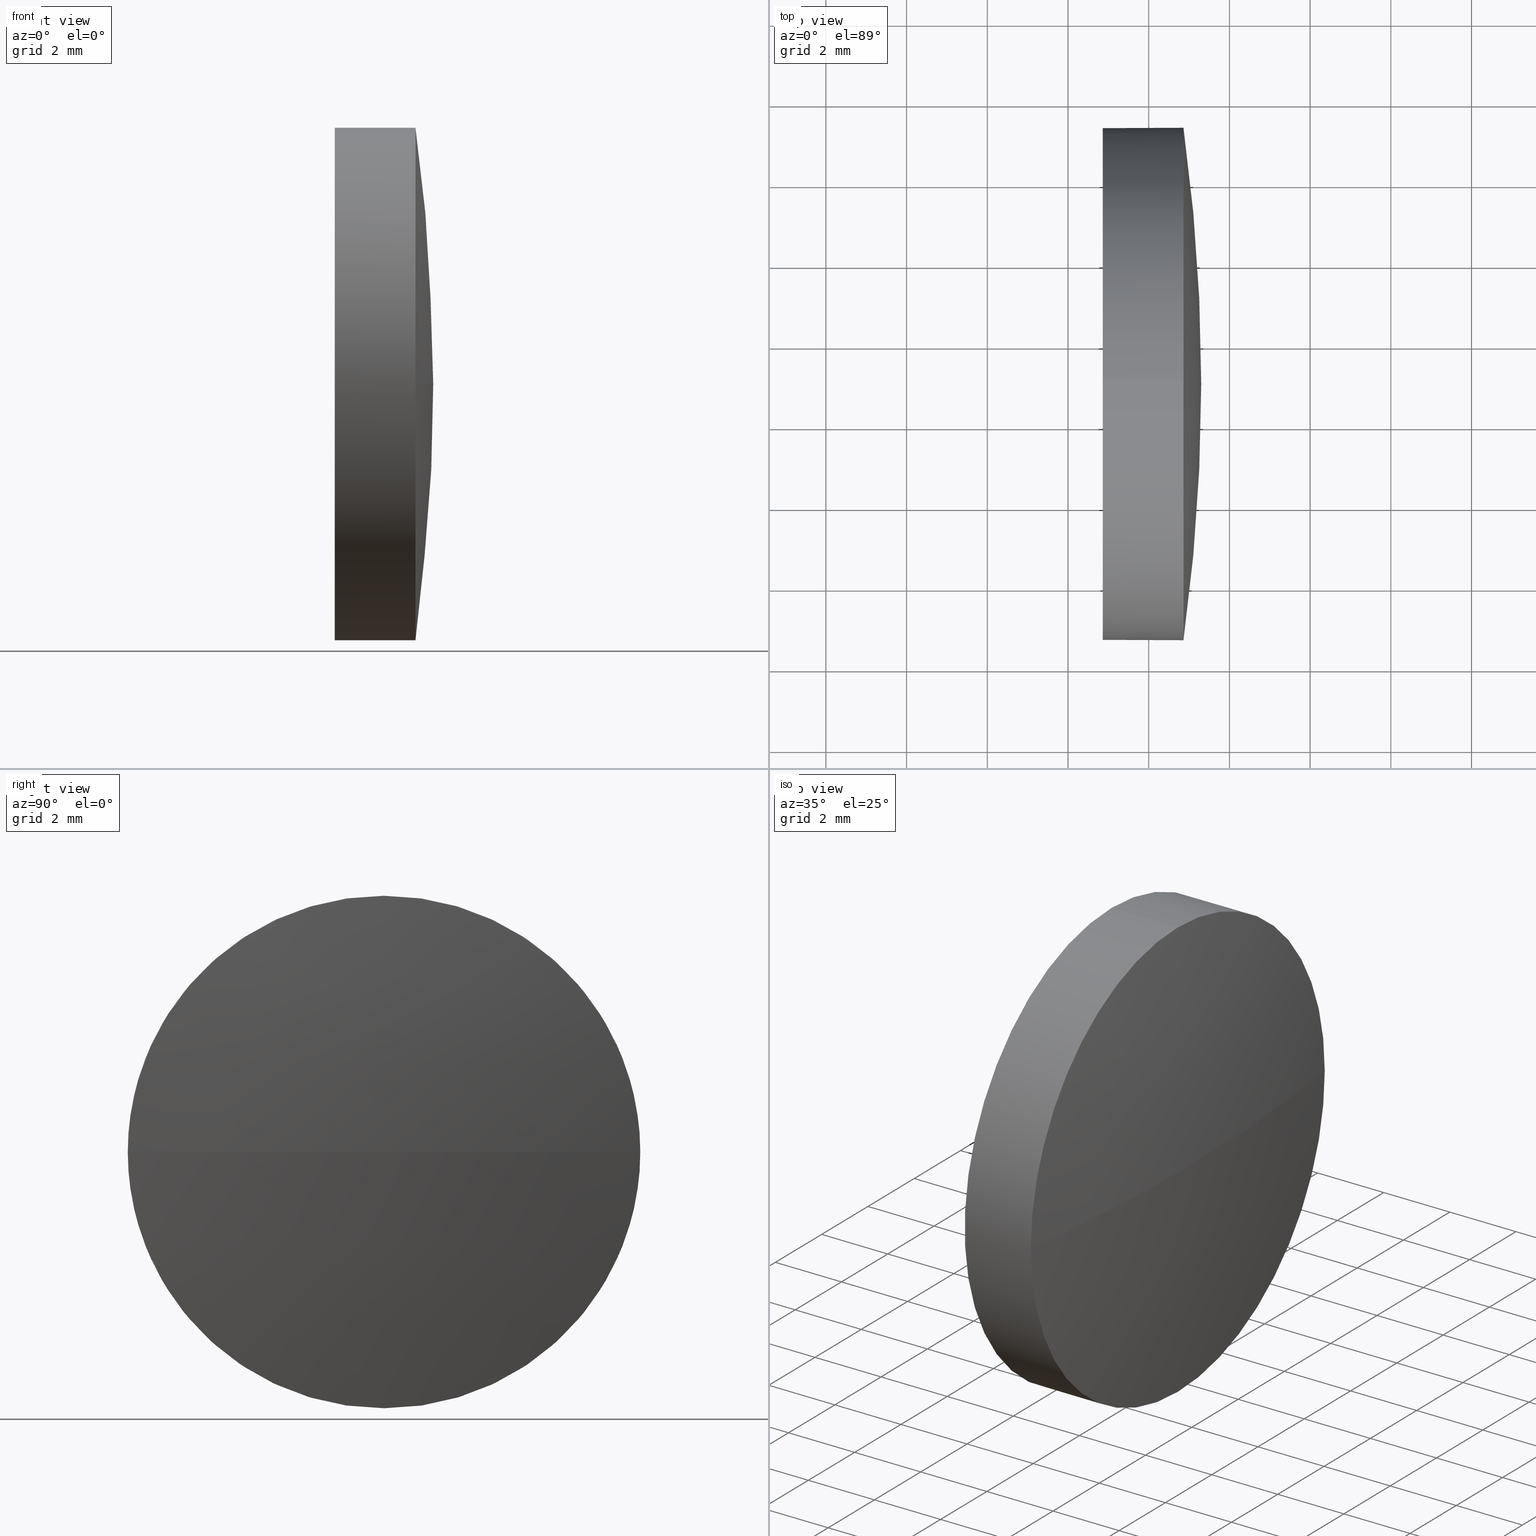
[diagram: canonical four-view strip — front | top / right | iso, engineering-drawing reading convention]
A machine part, canonical four-view strip (front | top / right | iso — engineering-drawing reading convention). The complete STEP part file that produces these views, byte-faithful:
ISO-10303-21;
HEADER;
FILE_DESCRIPTION (( 'STEP AP214' ),
    '1' );
FILE_NAME ('100368.STEP',
    '2019-06-04T05:39:12',
    ( '' ),
    ( '' ),
    'SwSTEP 2.0',
    'SolidWorks 2016',
    '' );
FILE_SCHEMA (( 'AUTOMOTIVE_DESIGN' ));
ENDSEC;

DATA;
#1 = DIRECTION ( 'NONE',  ( -0.0000000000000000000, 0.0000000000000000000, 1.000000000000000000 ) ) ;
#2 = APPLICATION_CONTEXT ( 'automotive_design' ) ;
#3 = DIRECTION ( 'NONE',  ( -1.000000000000000000, -0.0000000000000000000, -0.0000000000000000000 ) ) ;
#4 = AXIS2_PLACEMENT_3D ( 'NONE', #124, #61, #127 ) ;
#5 = DIRECTION ( 'NONE',  ( -1.000000000000000000, -0.0000000000000000000, -0.0000000000000000000 ) ) ;
#6 = ORIENTED_EDGE ( 'NONE', *, *, #56, .F. ) ;
#7 = DIRECTION ( 'NONE',  ( 0.0000000000000000000, 0.0000000000000000000, 1.000000000000000000 ) ) ;
#8 = AXIS2_PLACEMENT_3D ( 'NONE', #153, #1, #156 ) ;
#9 = ORIENTED_EDGE ( 'NONE', *, *, #102, .F. ) ;
#10 = AXIS2_PLACEMENT_3D ( 'NONE', #126, #164, #22 ) ;
#11 = CIRCLE ( 'NONE', #120, 6.349999999999994300 ) ;
#12 = EDGE_LOOP ( 'NONE', ( #6, #146, #9, #85 ) ) ;
#13 = SPHERICAL_SURFACE ( 'NONE', #4, 46.04102272727063600 ) ;
#14 = CARTESIAN_POINT ( 'NONE',  ( 502.8615574523524900, 27.01923278468612500, 0.0000000000000000000 ) ) ;
#15 = CARTESIAN_POINT ( 'NONE',  ( 504.8615574523524900, 33.36923278468605500, 0.0000000000000000000 ) ) ;
#16 = DIRECTION ( 'NONE',  ( -1.000000000000000000, -0.0000000000000000000, -0.0000000000000000000 ) ) ;
#17 = STYLED_ITEM ( 'NONE', ( #25 ), #107 ) ;
#18 = PRODUCT_CONTEXT ( 'NONE', #2, 'mechanical' ) ;
#19 = ORIENTED_EDGE ( 'NONE', *, *, #24, .F. ) ;
#20 = SURFACE_SIDE_STYLE ('',( #138 ) ) ;
#21 = SPHERICAL_SURFACE ( 'NONE', #183, 46.04102272727063600 ) ;
#22 = DIRECTION ( 'NONE',  ( 0.0000000000000000000, 0.0000000000000000000, 1.000000000000000000 ) ) ;
#23 = STYLED_ITEM ( 'NONE', ( #35 ), #144 ) ;
#24 = EDGE_CURVE ( 'NONE', #73, #90, #36, .T. ) ;
#25 = PRESENTATION_STYLE_ASSIGNMENT (( #149 ) ) ;
#26 = MECHANICAL_DESIGN_GEOMETRIC_PRESENTATION_REPRESENTATION (  '', ( #17 ), #80 ) ;
#27 = CARTESIAN_POINT ( 'NONE',  ( 500.5335289623582800, 27.01923278468612500, -6.349999999999994300 ) ) ;
#28 = EDGE_LOOP ( 'NONE', ( #181, #121, #123, #105, #43 ) ) ;
#29 = UNCERTAINTY_MEASURE_WITH_UNIT (LENGTH_MEASURE( 1.000000000000000100E-005 ), #166, 'distance_accuracy_value', 'NONE');
#30 = SURFACE_STYLE_USAGE ( .BOTH. , #20 ) ;
#31 = DIRECTION ( 'NONE',  ( 1.000000000000000000, 0.0000000000000000000, 0.0000000000000000000 ) ) ;
#32 = CARTESIAN_POINT ( 'NONE',  ( 500.5335289623582800, 27.01923278468612500, 0.0000000000000000000 ) ) ;
#33 = EDGE_CURVE ( 'NONE', #174, #51, #74, .T. ) ;
#34 =( LENGTH_UNIT ( ) NAMED_UNIT ( * ) SI_UNIT ( .MILLI., .METRE. ) );
#35 = PRESENTATION_STYLE_ASSIGNMENT (( #30 ) ) ;
#36 = CIRCLE ( 'NONE', #42, 6.349999999999994300 ) ;
#37 = ADVANCED_FACE ( 'NONE', ( #140 ), #13, .T. ) ;
#38 = PRESENTATION_LAYER_ASSIGNMENT (  '', '', ( #23 ) ) ;
#39 = ORIENTED_EDGE ( 'NONE', *, *, #106, .T. ) ;
#40 = CIRCLE ( 'NONE', #108, 6.349999999999994300 ) ;
#41 = PRODUCT_DEFINITION_SHAPE ( 'NONE', 'NONE',  #62 ) ;
#42 = AXIS2_PLACEMENT_3D ( 'NONE', #96, #16, #163 ) ;
#43 = ORIENTED_EDGE ( 'NONE', *, *, #133, .F. ) ;
#44 = SURFACE_STYLE_FILL_AREA ( #78 ) ;
#45 = FACE_OUTER_BOUND ( 'NONE', #28, .T. ) ;
#46 = PLANE ( 'NONE',  #68 ) ;
#47 = CARTESIAN_POINT ( 'NONE',  ( 504.8615574523524900, 27.01923278468612500, 6.349999999999994300 ) ) ;
#48 = CARTESIAN_POINT ( 'NONE',  ( 459.2605347250818700, 27.01923278468606800, 0.0000000000000000000 ) ) ;
#49 = MECHANICAL_DESIGN_GEOMETRIC_PRESENTATION_REPRESENTATION (  '', ( #23 ), #169 ) ;
#50 = DIRECTION ( 'NONE',  ( -1.000000000000000000, -0.0000000000000000000, -0.0000000000000000000 ) ) ;
#51 = VERTEX_POINT ( 'NONE', #112 ) ;
#52 = FILL_AREA_STYLE_COLOUR ( '', #162 ) ;
#53 = EDGE_CURVE ( 'NONE', #73, #101, #125, .T. ) ;
#54 = FACE_OUTER_BOUND ( 'NONE', #75, .T. ) ;
#55 = ORIENTED_EDGE ( 'NONE', *, *, #86, .T. ) ;
#56 = EDGE_CURVE ( 'NONE', #93, #90, #58, .T. ) ;
#57 = SHAPE_DEFINITION_REPRESENTATION ( #41, #107 ) ;
#58 = CIRCLE ( 'NONE', #118, 46.04102272727063600 ) ;
#59 =( GEOMETRIC_REPRESENTATION_CONTEXT ( 3 ) GLOBAL_UNCERTAINTY_ASSIGNED_CONTEXT ( ( #72 ) ) GLOBAL_UNIT_ASSIGNED_CONTEXT ( ( #64, #81, #180 ) ) REPRESENTATION_CONTEXT ( 'NONE', 'WORKASPACE' ) );
#60 = ORIENTED_EDGE ( 'NONE', *, *, #106, .F. ) ;
#61 = DIRECTION ( 'NONE',  ( -0.0000000000000000000, 0.0000000000000000000, -1.000000000000000000 ) ) ;
#62 = PRODUCT_DEFINITION ( 'δ֪', '', #111, #141 ) ;
#63 = CARTESIAN_POINT ( 'NONE',  ( 504.8615574523524900, 27.01923278468612500, -6.349999999999994300 ) ) ;
#64 =( LENGTH_UNIT ( ) NAMED_UNIT ( * ) SI_UNIT ( .MILLI., .METRE. ) );
#65 = DIRECTION ( 'NONE',  ( 0.0000000000000000000, 0.0000000000000000000, 1.000000000000000000 ) ) ;
#66 = PRODUCT ( '100368', '100368', '', ( #18 ) ) ;
#67 = DIRECTION ( 'NONE',  ( -1.000000000000000000, -0.0000000000000000000, -0.0000000000000000000 ) ) ;
#68 = AXIS2_PLACEMENT_3D ( 'NONE', #14, #31, #109 ) ;
#69 =( NAMED_UNIT ( * ) SI_UNIT ( $, .STERADIAN. ) SOLID_ANGLE_UNIT ( ) );
#70 = PRODUCT_RELATED_PRODUCT_CATEGORY ( 'part', '', ( #66 ) ) ;
#71 = ADVANCED_FACE ( 'NONE', ( #54 ), #46, .F. ) ;
#72 = UNCERTAINTY_MEASURE_WITH_UNIT (LENGTH_MEASURE( 1.000000000000000100E-005 ), #64, 'distance_accuracy_value', 'NONE');
#73 = VERTEX_POINT ( 'NONE', #63 ) ;
#74 = LINE ( 'NONE', #186, #87 ) ;
#75 = EDGE_LOOP ( 'NONE', ( #55, #170 ) ) ;
#76 = FILL_AREA_STYLE_COLOUR ( '', #150 ) ;
#77 = CARTESIAN_POINT ( 'NONE',  ( 504.8615574523524900, 20.66923278468613400, -7.776507174585607400E-016 ) ) ;
#78 = FILL_AREA_STYLE ('',( #76 ) ) ;
#79 = CARTESIAN_POINT ( 'NONE',  ( 502.8615574523524900, 27.01923278468612500, -6.349999999999994300 ) ) ;
#80 =( GEOMETRIC_REPRESENTATION_CONTEXT ( 3 ) GLOBAL_UNCERTAINTY_ASSIGNED_CONTEXT ( ( #29 ) ) GLOBAL_UNIT_ASSIGNED_CONTEXT ( ( #166, #97, #179 ) ) REPRESENTATION_CONTEXT ( 'NONE', 'WORKASPACE' ) );
#81 =( NAMED_UNIT ( * ) PLANE_ANGLE_UNIT ( ) SI_UNIT ( $, .RADIAN. ) );
#82 = DIRECTION ( 'NONE',  ( 0.0000000000000000000, 0.0000000000000000000, 1.000000000000000000 ) ) ;
#83 =( NAMED_UNIT ( * ) PLANE_ANGLE_UNIT ( ) SI_UNIT ( $, .RADIAN. ) );
#84 = APPLICATION_PROTOCOL_DEFINITION ( 'draft international standard', 'automotive_design', 1998, #2 ) ;
#85 = ORIENTED_EDGE ( 'NONE', *, *, #89, .F. ) ;
#86 = EDGE_CURVE ( 'NONE', #51, #101, #40, .T. ) ;
#87 = VECTOR ( 'NONE', #110, 1000.000000000000000 ) ;
#88 = UNCERTAINTY_MEASURE_WITH_UNIT (LENGTH_MEASURE( 1.000000000000000100E-005 ), #34, 'distance_accuracy_value', 'NONE');
#89 = EDGE_CURVE ( 'NONE', #90, #174, #11, .T. ) ;
#90 = VERTEX_POINT ( 'NONE', #77 ) ;
#91 = CYLINDRICAL_SURFACE ( 'NONE', #176, 6.349999999999994300 ) ;
#92 = CIRCLE ( 'NONE', #10, 6.349999999999994300 ) ;
#93 = VERTEX_POINT ( 'NONE', #100 ) ;
#94 = CIRCLE ( 'NONE', #157, 6.349999999999994300 ) ;
#95 = DIRECTION ( 'NONE',  ( 0.0000000000000000000, 1.224646799147353200E-016, -1.000000000000000000 ) ) ;
#96 = CARTESIAN_POINT ( 'NONE',  ( 504.8615574523524900, 27.01923278468612500, 0.0000000000000000000 ) ) ;
#97 =( NAMED_UNIT ( * ) PLANE_ANGLE_UNIT ( ) SI_UNIT ( $, .RADIAN. ) );
#98 = DIRECTION ( 'NONE',  ( -1.000000000000000000, -0.0000000000000000000, -0.0000000000000000000 ) ) ;
#99 = DIRECTION ( 'NONE',  ( 1.000000000000000000, 0.0000000000000000000, 0.0000000000000000000 ) ) ;
#100 = CARTESIAN_POINT ( 'NONE',  ( 505.3015574523524800, 27.01923278468607100, 0.0000000000000000000 ) ) ;
#101 = VERTEX_POINT ( 'NONE', #79 ) ;
#102 = EDGE_CURVE ( 'NONE', #174, #142, #94, .T. ) ;
#103 = VECTOR ( 'NONE', #152, 1000.000000000000000 ) ;
#104 = AXIS2_PLACEMENT_3D ( 'NONE', #113, #7, #99 ) ;
#105 = ORIENTED_EDGE ( 'NONE', *, *, #33, .T. ) ;
#106 = EDGE_CURVE ( 'NONE', #142, #73, #136, .T. ) ;
#107 = ADVANCED_BREP_SHAPE_REPRESENTATION ( '100368', ( #144, #104 ), #59 ) ;
#108 = AXIS2_PLACEMENT_3D ( 'NONE', #151, #3, #114 ) ;
#109 = DIRECTION ( 'NONE',  ( 0.0000000000000000000, 0.0000000000000000000, -1.000000000000000000 ) ) ;
#110 = DIRECTION ( 'NONE',  ( -1.000000000000000000, -0.0000000000000000000, -0.0000000000000000000 ) ) ;
#111 = PRODUCT_DEFINITION_FORMATION_WITH_SPECIFIED_SOURCE ( '�κ�', '', #66, .NOT_KNOWN. ) ;
#112 = CARTESIAN_POINT ( 'NONE',  ( 502.8615574523524900, 27.01923278468612500, 6.349999999999994300 ) ) ;
#113 = CARTESIAN_POINT ( 'NONE',  ( 0.0000000000000000000, 0.0000000000000000000, 0.0000000000000000000 ) ) ;
#114 = DIRECTION ( 'NONE',  ( 0.0000000000000000000, 0.0000000000000000000, 1.000000000000000000 ) ) ;
#115 = APPLICATION_CONTEXT ( 'automotive_design' ) ;
#116 = DIRECTION ( 'NONE',  ( 0.0000000000000000000, 0.0000000000000000000, 1.000000000000000000 ) ) ;
#117 = ORIENTED_EDGE ( 'NONE', *, *, #86, .F. ) ;
#118 = AXIS2_PLACEMENT_3D ( 'NONE', #48, #95, #175 ) ;
#119 = ADVANCED_FACE ( 'NONE', ( #45 ), #160, .T. ) ;
#120 = AXIS2_PLACEMENT_3D ( 'NONE', #178, #98, #82 ) ;
#121 = ORIENTED_EDGE ( 'NONE', *, *, #24, .T. ) ;
#122 = PRESENTATION_LAYER_ASSIGNMENT (  '', '', ( #17 ) ) ;
#123 = ORIENTED_EDGE ( 'NONE', *, *, #89, .T. ) ;
#124 = CARTESIAN_POINT ( 'NONE',  ( 459.2605347250818700, 27.01923278468606800, 0.0000000000000000000 ) ) ;
#125 = LINE ( 'NONE', #27, #103 ) ;
#126 = CARTESIAN_POINT ( 'NONE',  ( 502.8615574523524900, 27.01923278468612500, 0.0000000000000000000 ) ) ;
#127 = DIRECTION ( 'NONE',  ( 0.0000000000000000000, 1.000000000000000000, 0.0000000000000000000 ) ) ;
#128 = CARTESIAN_POINT ( 'NONE',  ( 500.5335289623582800, 27.01923278468612500, 0.0000000000000000000 ) ) ;
#129 = CARTESIAN_POINT ( 'NONE',  ( 504.8615574523524900, 27.01923278468612500, 0.0000000000000000000 ) ) ;
#130 = APPLICATION_PROTOCOL_DEFINITION ( 'draft international standard', 'automotive_design', 1998, #115 ) ;
#131 = DIRECTION ( 'NONE',  ( 0.0000000000000000000, 0.0000000000000000000, 1.000000000000000000 ) ) ;
#132 = ORIENTED_EDGE ( 'NONE', *, *, #56, .T. ) ;
#133 = EDGE_CURVE ( 'NONE', #101, #51, #92, .T. ) ;
#134 = CARTESIAN_POINT ( 'NONE',  ( 459.2605347250818700, 27.01923278468606800, 0.0000000000000000000 ) ) ;
#135 = FACE_OUTER_BOUND ( 'NONE', #12, .T. ) ;
#136 = CIRCLE ( 'NONE', #185, 6.349999999999994300 ) ;
#137 = AXIS2_PLACEMENT_3D ( 'NONE', #32, #154, #116 ) ;
#138 = SURFACE_STYLE_FILL_AREA ( #147 ) ;
#139 = ORIENTED_EDGE ( 'NONE', *, *, #33, .F. ) ;
#140 = FACE_OUTER_BOUND ( 'NONE', #182, .T. ) ;
#141 = PRODUCT_DEFINITION_CONTEXT ( 'detailed design', #115, 'design' ) ;
#142 = VERTEX_POINT ( 'NONE', #15 ) ;
#143 = CIRCLE ( 'NONE', #8, 46.04102272727062200 ) ;
#144 = MANIFOLD_SOLID_BREP ( '��ת1', #159 ) ;
#145 = DIRECTION ( 'NONE',  ( 0.0000000000000000000, 1.000000000000000000, 0.0000000000000000000 ) ) ;
#146 = ORIENTED_EDGE ( 'NONE', *, *, #172, .T. ) ;
#147 = FILL_AREA_STYLE ('',( #52 ) ) ;
#148 = ORIENTED_EDGE ( 'NONE', *, *, #172, .F. ) ;
#149 = SURFACE_STYLE_USAGE ( .BOTH. , #177 ) ;
#150 = COLOUR_RGB ( '',1.000000000000000000, 1.000000000000000000, 1.000000000000000000 ) ;
#151 = CARTESIAN_POINT ( 'NONE',  ( 502.8615574523524900, 27.01923278468612500, 0.0000000000000000000 ) ) ;
#152 = DIRECTION ( 'NONE',  ( -1.000000000000000000, -0.0000000000000000000, -0.0000000000000000000 ) ) ;
#153 = CARTESIAN_POINT ( 'NONE',  ( 459.2605347250818700, 27.01923278468606800, 0.0000000000000000000 ) ) ;
#154 = DIRECTION ( 'NONE',  ( -1.000000000000000000, -0.0000000000000000000, -0.0000000000000000000 ) ) ;
#155 = DIRECTION ( 'NONE',  ( -0.0000000000000000000, 0.0000000000000000000, -1.000000000000000000 ) ) ;
#156 = DIRECTION ( 'NONE',  ( 1.000000000000000000, 0.0000000000000000000, 0.0000000000000000000 ) ) ;
#157 = AXIS2_PLACEMENT_3D ( 'NONE', #129, #67, #65 ) ;
#158 = EDGE_LOOP ( 'NONE', ( #39, #161, #117, #139, #184 ) ) ;
#159 = CLOSED_SHELL ( 'NONE', ( #173, #37, #168, #119, #71 ) ) ;
#160 = CYLINDRICAL_SURFACE ( 'NONE', #137, 6.349999999999994300 ) ;
#161 = ORIENTED_EDGE ( 'NONE', *, *, #53, .T. ) ;
#162 = COLOUR_RGB ( '',1.000000000000000000, 1.000000000000000000, 1.000000000000000000 ) ;
#163 = DIRECTION ( 'NONE',  ( 0.0000000000000000000, 0.0000000000000000000, 1.000000000000000000 ) ) ;
#164 = DIRECTION ( 'NONE',  ( -1.000000000000000000, -0.0000000000000000000, -0.0000000000000000000 ) ) ;
#165 = DIRECTION ( 'NONE',  ( 0.0000000000000000000, 0.0000000000000000000, 1.000000000000000000 ) ) ;
#166 =( LENGTH_UNIT ( ) NAMED_UNIT ( * ) SI_UNIT ( .MILLI., .METRE. ) );
#167 = CARTESIAN_POINT ( 'NONE',  ( 504.8615574523524900, 27.01923278468612500, 0.0000000000000000000 ) ) ;
#168 = ADVANCED_FACE ( 'NONE', ( #135 ), #21, .T. ) ;
#169 =( GEOMETRIC_REPRESENTATION_CONTEXT ( 3 ) GLOBAL_UNCERTAINTY_ASSIGNED_CONTEXT ( ( #88 ) ) GLOBAL_UNIT_ASSIGNED_CONTEXT ( ( #34, #83, #69 ) ) REPRESENTATION_CONTEXT ( 'NONE', 'WORKASPACE' ) );
#170 = ORIENTED_EDGE ( 'NONE', *, *, #133, .T. ) ;
#171 = FACE_OUTER_BOUND ( 'NONE', #158, .T. ) ;
#172 = EDGE_CURVE ( 'NONE', #93, #142, #143, .T. ) ;
#173 = ADVANCED_FACE ( 'NONE', ( #171 ), #91, .T. ) ;
#174 = VERTEX_POINT ( 'NONE', #47 ) ;
#175 = DIRECTION ( 'NONE',  ( 0.0000000000000000000, 1.000000000000000000, 1.224646799147353200E-016 ) ) ;
#176 = AXIS2_PLACEMENT_3D ( 'NONE', #128, #50, #131 ) ;
#177 = SURFACE_SIDE_STYLE ('',( #44 ) ) ;
#178 = CARTESIAN_POINT ( 'NONE',  ( 504.8615574523524900, 27.01923278468612500, 0.0000000000000000000 ) ) ;
#179 =( NAMED_UNIT ( * ) SI_UNIT ( $, .STERADIAN. ) SOLID_ANGLE_UNIT ( ) );
#180 =( NAMED_UNIT ( * ) SI_UNIT ( $, .STERADIAN. ) SOLID_ANGLE_UNIT ( ) );
#181 = ORIENTED_EDGE ( 'NONE', *, *, #53, .F. ) ;
#182 = EDGE_LOOP ( 'NONE', ( #148, #132, #19, #60 ) ) ;
#183 = AXIS2_PLACEMENT_3D ( 'NONE', #134, #155, #145 ) ;
#184 = ORIENTED_EDGE ( 'NONE', *, *, #102, .T. ) ;
#185 = AXIS2_PLACEMENT_3D ( 'NONE', #167, #5, #165 ) ;
#186 = CARTESIAN_POINT ( 'NONE',  ( 500.5335289623582800, 27.01923278468612500, 6.349999999999994300 ) ) ;
ENDSEC;
END-ISO-10303-21;
